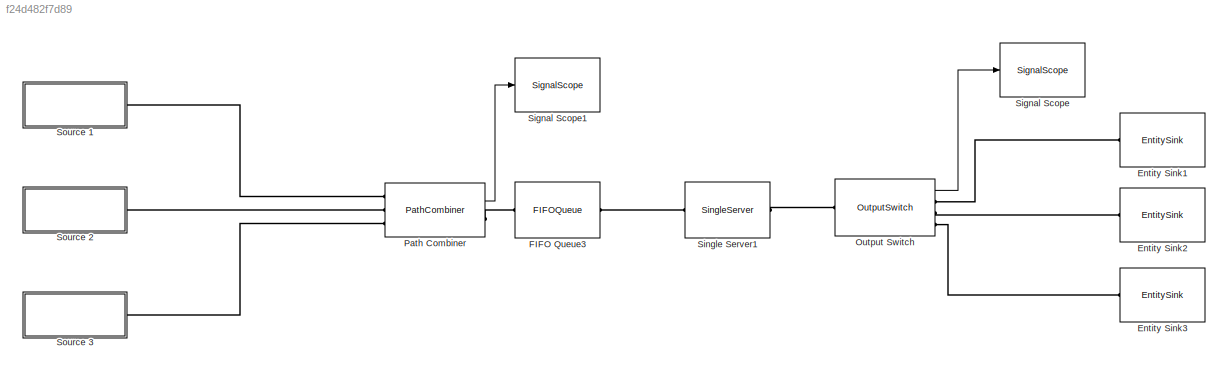
MODEL slx_f24d482f7d89
KIND model
BLOCK [EntitySink] Entity Sink1
  Ports = [0, 0, 0, 0, 0, 1]
BLOCK [EntitySink] Entity Sink2
  Ports = [0, 0, 0, 0, 0, 1]
BLOCK [EntitySink] Entity Sink3
  Ports = [0, 0, 0, 0, 0, 1]
BLOCK [FIFOQueue] FIFO Queue3
  Ports = [0, 0, 0, 0, 0, 1, 1]
BLOCK [OutputSwitch] Output Switch
  AttributeName = Destination
  OutputPortMap = o3
  Ports = [0, 1, 0, 0, 0, 1, 3]
  StatLastDeparturePort = on
  SwitchingCriterion = From attribute
BLOCK [PathCombiner] Path Combiner
  InputPortPrecedence = Round robin
  OutputPortMap = o1
  Ports = [0, 1, 0, 0, 0, 3, 1]
  StatLastArrivalPort = on
BLOCK [SignalScope] Signal Scope
  CopyFcn = des.scope.CallbackSupport('seCopyFcn',gcbh)
  DeleteFcn = des.scope.CallbackSupport('seDeleteFcn',gcbh)
  InputPortMap = u0
  LoadFcn = des.scope.CallbackSupport('seLoadFcn',gcbh)
  NameChangeFcn = des.scope.CallbackSupport('seNameChangeFcn',gcbh)
  OpenFcn = des.scope.CallbackSupport('seOpenFcn',gcbh)
  Ports = [1]
  PreSaveFcn = des.scope.CallbackSupport('sePreSaveFcn',gcbh)
  StartFcn = des.scope.CallbackSupport('seStartFcn',gcbh)
  StopFcn = des.scope.CallbackSupport('seStopFcn',gcbh)
BLOCK [SignalScope] Signal Scope1
  CopyFcn = des.scope.CallbackSupport('seCopyFcn',gcbh)
  DeleteFcn = des.scope.CallbackSupport('seDeleteFcn',gcbh)
  InputPortMap = u0
  LoadFcn = des.scope.CallbackSupport('seLoadFcn',gcbh)
  NameChangeFcn = des.scope.CallbackSupport('seNameChangeFcn',gcbh)
  OpenFcn = des.scope.CallbackSupport('seOpenFcn',gcbh)
  Ports = [1]
  PreSaveFcn = des.scope.CallbackSupport('sePreSaveFcn',gcbh)
  StartFcn = des.scope.CallbackSupport('seStartFcn',gcbh)
  StopFcn = des.scope.CallbackSupport('seStopFcn',gcbh)
BLOCK [SingleServer] Single Server1
  Ports = [0, 0, 0, 0, 0, 1, 1]
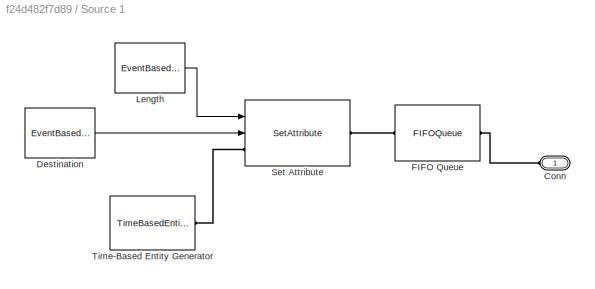
BLOCK [SubSystem] Source 1
  FunctionWithSeparateData = off
  MaskHideContents = off
  MinAlgLoopOccurrences = off
  Opaque = off
  Ports = [0, 0, 0, 0, 0, 1]
  PropExecContextOutsideSubsystem = off
  RTWSystemCode = Auto
  RequestExecContextInheritance = off
BLOCK [PMIOPort] Source 1/Conn
  Port = 1
  Side = Left
BLOCK [EventBasedRandomNumber] Source 1/Destination
  Distribution = Discrete uniform
  OutputPortMap = o0
  Ports = [0, 1]
  maxUnid = 3
  minUnid = 1
  numValueUnid = 3
BLOCK [FIFOQueue] Source 1/FIFO Queue
  Ports = [0, 0, 0, 0, 0, 1, 1]
BLOCK [EventBasedRandomNumber] Source 1/Length
  Distribution = Discrete uniform
  OutputPortMap = o0
  Ports = [0, 1]
  Seed = 4324234
  maxUnid = 10
  maxUnif = 10
  minUnid = 6
  minUnif = 6
  numValueUnid = 5
BLOCK [SetAttribute] Source 1/Set Attribute
  AttributeFrom = Signal port|Signal port
  AttributeName = Lenght|Destination
  AttributeTreatAsVector = 1|1
  AttributeValue = 1|1
  EvaluatedAttributeValue = { [];[]}
  InputPortMap = u0,u1
  Ports = [2, 0, 0, 0, 0, 1, 1]
BLOCK [TimeBasedEntityGenerator] Source 1/Time-Based Entity Generator
  Ports = [0, 0, 0, 0, 0, 0, 1]
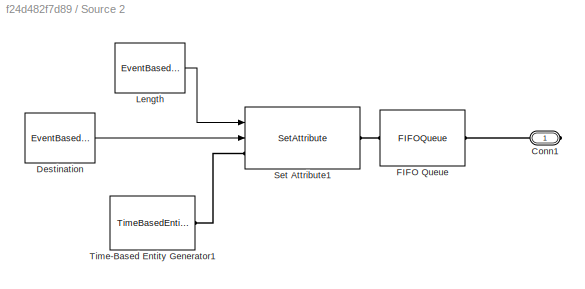
BLOCK [SubSystem] Source 2
  FunctionWithSeparateData = off
  MaskHideContents = off
  MinAlgLoopOccurrences = off
  Opaque = off
  Ports = [0, 0, 0, 0, 0, 0, 1]
  PropExecContextOutsideSubsystem = off
  RTWSystemCode = Auto
  RequestExecContextInheritance = off
BLOCK [PMIOPort] Source 2/Conn1
  Port = 1
  Side = Right
BLOCK [EventBasedRandomNumber] Source 2/Destination
  Distribution = Discrete uniform
  OutputPortMap = o0
  Ports = [0, 1]
  maxUnid = 3
  minUnid = 1
  numValueUnid = 3
BLOCK [FIFOQueue] Source 2/FIFO Queue
  Ports = [0, 0, 0, 0, 0, 1, 1]
BLOCK [EventBasedRandomNumber] Source 2/Length
  Distribution = Discrete uniform
  OutputPortMap = o0
  Ports = [0, 1]
  Seed = 4324234
  maxUnid = 10
  maxUnif = 10
  minUnid = 6
  minUnif = 6
  numValueUnid = 5
BLOCK [SetAttribute] Source 2/Set Attribute1
  AttributeFrom = Signal port|Signal port
  AttributeName = Lenght|Destination
  AttributeTreatAsVector = 1|1
  AttributeValue = 1|1
  EvaluatedAttributeValue = { [];[]}
  InputPortMap = u0,u1
  Ports = [2, 0, 0, 0, 0, 1, 1]
BLOCK [TimeBasedEntityGenerator] Source 2/Time-Based Entity Generator1
  Ports = [0, 0, 0, 0, 0, 0, 1]
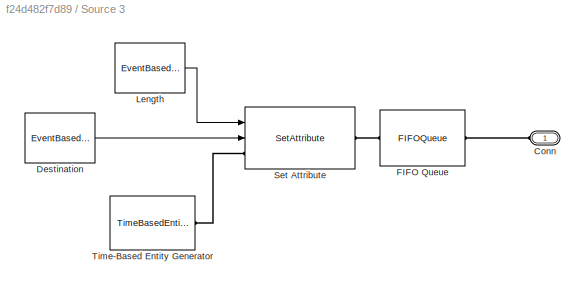
BLOCK [SubSystem] Source 3
  FunctionWithSeparateData = off
  MaskHideContents = off
  MinAlgLoopOccurrences = off
  Opaque = off
  Ports = [0, 0, 0, 0, 0, 1]
  PropExecContextOutsideSubsystem = off
  RTWSystemCode = Auto
  RequestExecContextInheritance = off
BLOCK [PMIOPort] Source 3/Conn
  Port = 1
  Side = Left
BLOCK [EventBasedRandomNumber] Source 3/Destination
  Distribution = Discrete uniform
  OutputPortMap = o0
  Ports = [0, 1]
  maxUnid = 3
  minUnid = 1
  numValueUnid = 3
BLOCK [FIFOQueue] Source 3/FIFO Queue
  Ports = [0, 0, 0, 0, 0, 1, 1]
BLOCK [EventBasedRandomNumber] Source 3/Length
  Distribution = Discrete uniform
  OutputPortMap = o0
  Ports = [0, 1]
  Seed = 4324234
  maxUnid = 10
  maxUnif = 10
  minUnid = 6
  minUnif = 6
  numValueUnid = 5
BLOCK [SetAttribute] Source 3/Set Attribute
  AttributeFrom = Signal port|Signal port
  AttributeName = Lenght|Destination
  AttributeTreatAsVector = 1|1
  AttributeValue = 1|1
  EvaluatedAttributeValue = { [];[]}
  InputPortMap = u0,u1
  Ports = [2, 0, 0, 0, 0, 1, 1]
BLOCK [TimeBasedEntityGenerator] Source 3/Time-Based Entity Generator
  Ports = [0, 0, 0, 0, 0, 0, 1]
LINE Output Switch:1 -> Signal Scope:1
LINE Path Combiner:1 -> Signal Scope1:1
LINE Source 1/Destination:1 -> Source 1/Set Attribute:2
LINE Source 1/Length:1 -> Source 1/Set Attribute:1
LINE Source 2/Destination:1 -> Source 2/Set Attribute1:2
LINE Source 2/Length:1 -> Source 2/Set Attribute1:1
LINE Source 3/Destination:1 -> Source 3/Set Attribute:2
LINE Source 3/Length:1 -> Source 3/Set Attribute:1
PLINE Entity Sink1:LConn1 -- Output Switch:RConn1
PLINE Entity Sink2:LConn1 -- Output Switch:RConn2
PLINE Entity Sink3:LConn1 -- Output Switch:RConn3
PLINE FIFO Queue3:LConn1 -- Path Combiner:RConn1
PLINE FIFO Queue3:RConn1 -- Single Server1:LConn1
PLINE Output Switch:LConn1 -- Single Server1:RConn1
PLINE Path Combiner:LConn1 -- Source 1:LConn1
PLINE Path Combiner:LConn2 -- Source 2:RConn1
PLINE Path Combiner:LConn3 -- Source 3:LConn1
PLINE Source 1/Conn:RConn1 -- Source 1/FIFO Queue:RConn1
PLINE Source 1/FIFO Queue:LConn1 -- Source 1/Set Attribute:RConn1
PLINE Source 1/Set Attribute:LConn1 -- Source 1/Time-Based Entity Generator:RConn1
PLINE Source 2/Conn1:RConn1 -- Source 2/FIFO Queue:RConn1
PLINE Source 2/FIFO Queue:LConn1 -- Source 2/Set Attribute1:RConn1
PLINE Source 2/Set Attribute1:LConn1 -- Source 2/Time-Based Entity Generator1:RConn1
PLINE Source 3/Conn:RConn1 -- Source 3/FIFO Queue:RConn1
PLINE Source 3/FIFO Queue:LConn1 -- Source 3/Set Attribute:RConn1
PLINE Source 3/Set Attribute:LConn1 -- Source 3/Time-Based Entity Generator:RConn1
